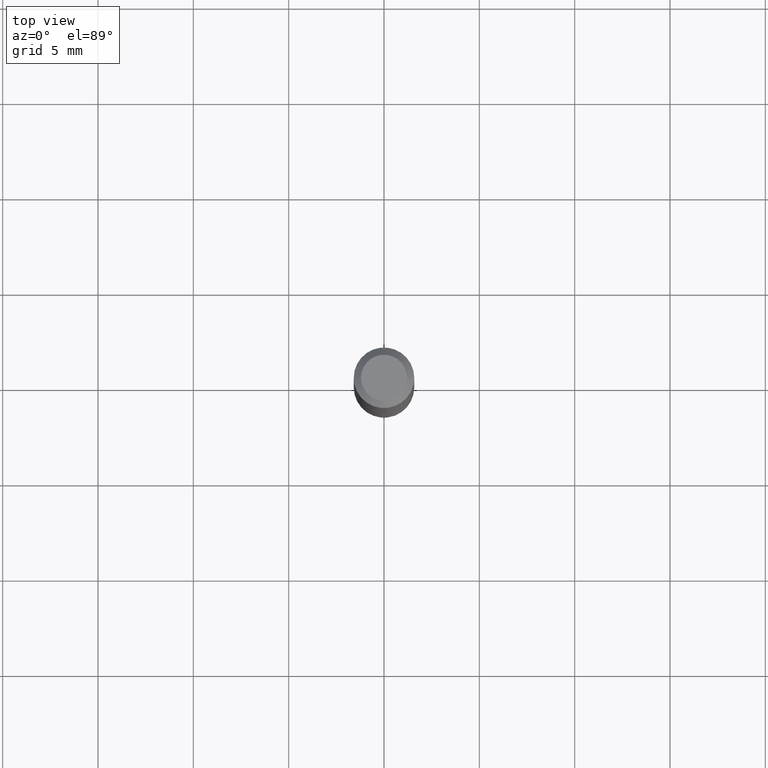
[diagram: clean part render]
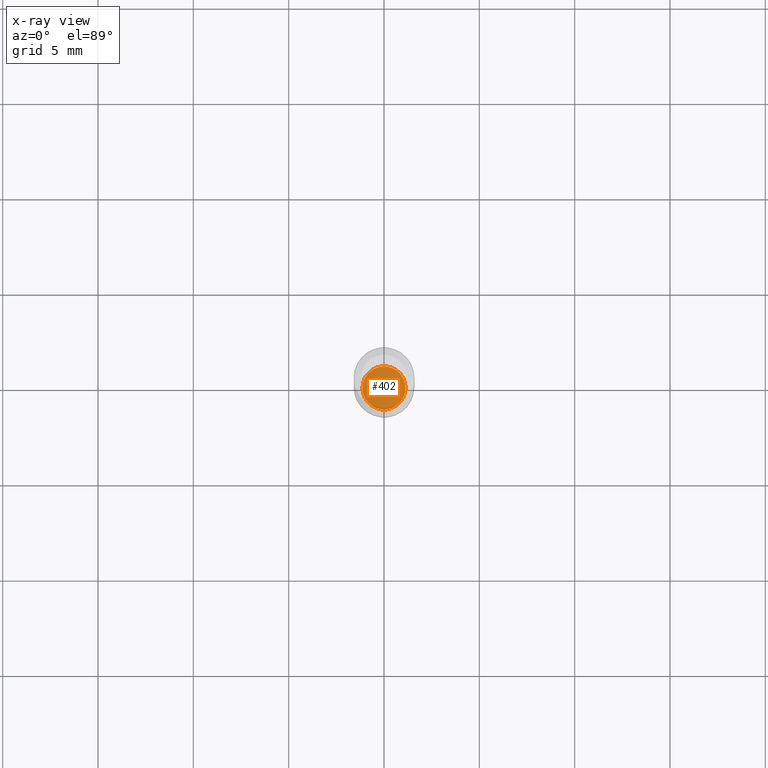
[diagram: x-ray — body ghosted, one internal face saturated and labeled with its STEP entity id]
A machine part, top view, then the same camera in x-ray: the body is ghosted and one INTERNAL B-rep face — a face not visible from any outside direction — is saturated and labeled: STEP entity #402.
In plain terms, the highlighted planar face has unit normal (-0, 0, 1).
Its self-contained STEP definition (entity closure, byte-faithful):
#24 = AXIS2_PLACEMENT_3D ( 'NONE', #31, #465, #225 ) ;
#31 = CARTESIAN_POINT ( 'NONE',  ( 3.007926631607718216E-29, -4.294522046777069173E-15, -1.230000000000000204 ) ) ;
#78 = AXIS2_PLACEMENT_3D ( 'NONE', #231, #102, #265 ) ;
#89 = AXIS2_PLACEMENT_3D ( 'NONE', #221, #348, #469 ) ;
#102 = DIRECTION ( 'NONE',  ( -2.445468806185136597E-29, 3.491481338843145583E-15, 1.000000000000000000 ) ) ;
#168 = CIRCLE ( 'NONE', #89, 0.04449999999999994238 ) ;
#173 = CARTESIAN_POINT ( 'NONE',  ( 0.04449999999999994238, -4.605263885934107852E-15, -1.230000000000000204 ) ) ;
#187 = FACE_OUTER_BOUND ( 'NONE', #294, .T. ) ;
#198 = VERTEX_POINT ( 'NONE', #401 ) ;
#215 = ORIENTED_EDGE ( 'NONE', *, *, #494, .F. ) ;
#221 = CARTESIAN_POINT ( 'NONE',  ( 3.007926631607718216E-29, -4.294522046777069173E-15, -1.230000000000000204 ) ) ;
#225 = DIRECTION ( 'NONE',  ( 1.000000000000000000, -6.982962677686265922E-15, 4.876176775795935793E-29 ) ) ;
#231 = CARTESIAN_POINT ( 'NONE',  ( 3.007926631607718216E-29, -4.294522046777069173E-15, -1.230000000000000204 ) ) ;
#265 = DIRECTION ( 'NONE',  ( 1.000000000000000000, -6.982962677686265922E-15, 0.000000000000000000 ) ) ;
#288 = CIRCLE ( 'NONE', #78, 0.04449999999999994238 ) ;
#294 = EDGE_LOOP ( 'NONE', ( #215, #457 ) ) ;
#348 = DIRECTION ( 'NONE',  ( -2.445468806185136597E-29, 3.491481338843145583E-15, 1.000000000000000000 ) ) ;
#354 = VERTEX_POINT ( 'NONE', #173 ) ;
#401 = CARTESIAN_POINT ( 'NONE',  ( -0.04449999999999994238, -3.975681302189714292E-15, -1.230000000000000204 ) ) ;
#402 = ADVANCED_FACE ( 'NONE', ( #187 ), #508, .F. ) ;
#408 = EDGE_CURVE ( 'NONE', #198, #354, #288, .T. ) ;
#457 = ORIENTED_EDGE ( 'NONE', *, *, #408, .F. ) ;
#465 = DIRECTION ( 'NONE',  ( -2.438088387897960049E-29, 3.491481338843145188E-15, 1.000000000000000000 ) ) ;
#469 = DIRECTION ( 'NONE',  ( 1.000000000000000000, -6.982962677686265922E-15, 0.000000000000000000 ) ) ;
#494 = EDGE_CURVE ( 'NONE', #354, #198, #168, .T. ) ;
#508 = PLANE ( 'NONE',  #24 ) ;